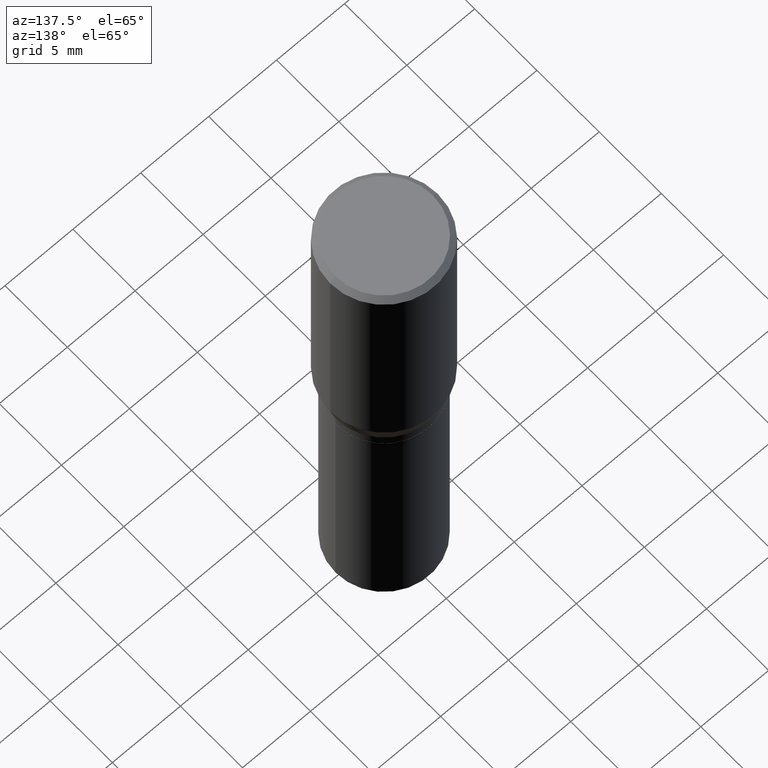
[diagram: clean part render]
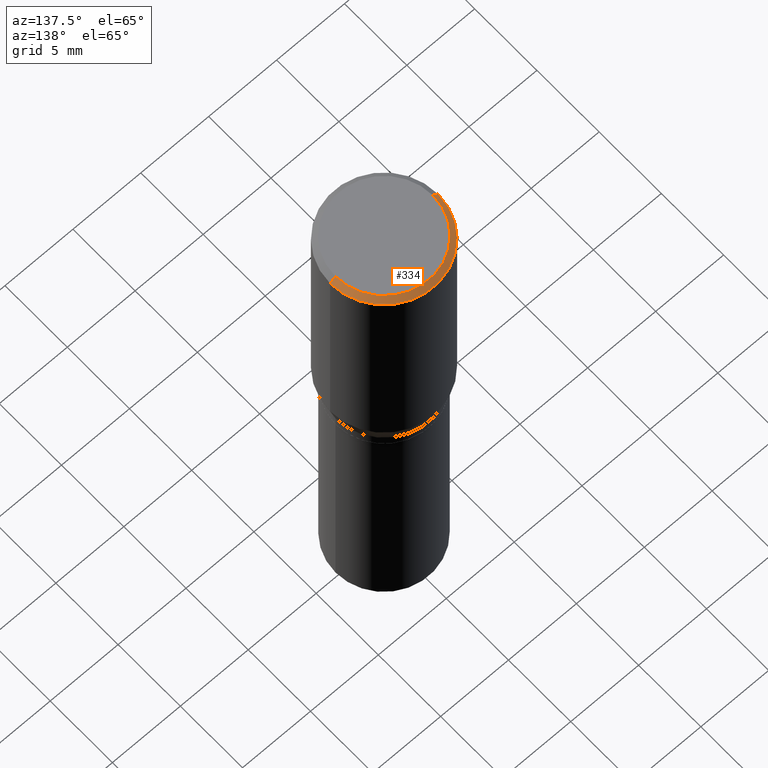
[diagram: same view with one face highlighted and labeled with its STEP entity id]
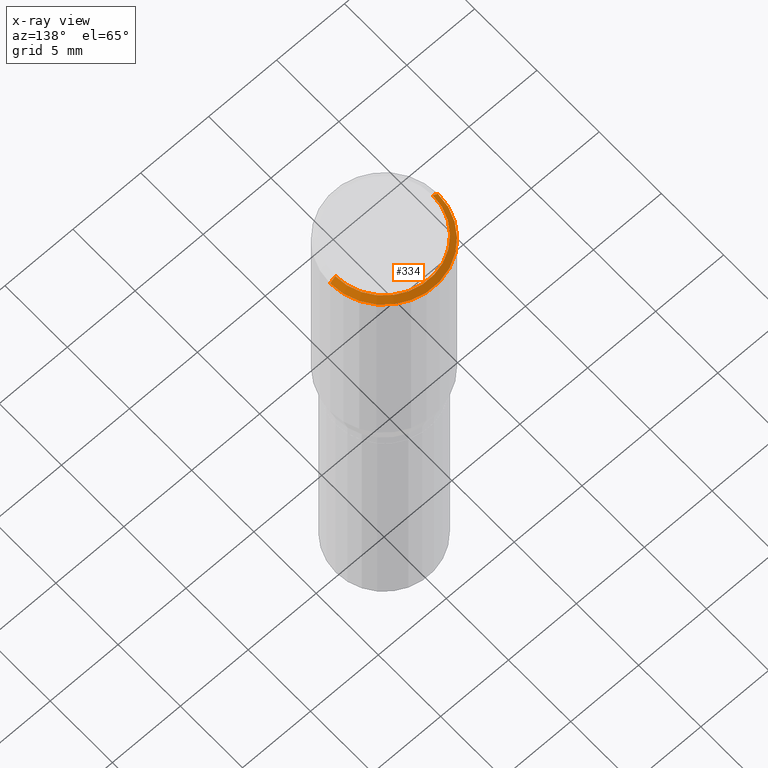
[diagram: x-ray of the same camera — body ghosted, the highlighted face saturated]
A machine part, auxiliary view. The second image highlights one B-rep face of the part: STEP entity #334.
The next image is the same camera in x-ray: the body ghosted, the highlighted face saturated — about 0% of this face is hidden behind the body in this view.
In plain terms, the highlighted conical surface has half-angle 45 deg.
Its self-contained STEP definition (entity closure, byte-faithful):
#14 = VECTOR ( 'NONE', #224, 39.37007874015748143 ) ;
#15 = CARTESIAN_POINT ( 'NONE',  ( -0.1412500000000000144, 1.012529588264509344E-15, 3.098871115969513504E-16 ) ) ;
#17 = CARTESIAN_POINT ( 'NONE',  ( 0.1412500000000000144, -1.046685187209838552E-15, 3.098871115969654020E-16 ) ) ;
#25 = VERTEX_POINT ( 'NONE', #46 ) ;
#46 = CARTESIAN_POINT ( 'NONE',  ( -0.1562500000000000000, -7.093359890406177996E-17, -0.01499999999999999944 ) ) ;
#91 = LINE ( 'NONE', #271, #425 ) ;
#111 = DIRECTION ( 'NONE',  ( 1.000000000000000000, -6.982962677686266711E-15, 0.000000000000000000 ) ) ;
#117 = CIRCLE ( 'NONE', #364, 0.1412500000000000144 ) ;
#122 = EDGE_CURVE ( 'NONE', #175, #25, #303, .T. ) ;
#127 = FACE_OUTER_BOUND ( 'NONE', #244, .T. ) ;
#129 = DIRECTION ( 'NONE',  ( -2.445468806185136597E-29, 3.491481338843145583E-15, 1.000000000000000000 ) ) ;
#130 = CARTESIAN_POINT ( 'NONE',  ( -0.1562500000000000000, 1.038715698305832094E-15, -0.01499999999999999944 ) ) ;
#163 = CARTESIAN_POINT ( 'NONE',  ( -7.578192648491738489E-45, 1.081965067288783235E-30, 3.098871115969583022E-16 ) ) ;
#167 = ORIENTED_EDGE ( 'NONE', *, *, #122, .T. ) ;
#175 = VERTEX_POINT ( 'NONE', #183 ) ;
#183 = CARTESIAN_POINT ( 'NONE',  ( 0.1562500000000000000, -1.143460138471126253E-15, -0.01499999999999999944 ) ) ;
#192 = LINE ( 'NONE', #130, #14 ) ;
#224 = DIRECTION ( 'NONE',  ( -0.7071067811865400232, 2.468850131082178174E-15, -0.7071067811865550112 ) ) ;
#234 = DIRECTION ( 'NONE',  ( -1.000000000000000000, 6.982962677686266711E-15, 0.000000000000000000 ) ) ;
#244 = EDGE_LOOP ( 'NONE', ( #389, #255, #167, #415 ) ) ;
#250 = CARTESIAN_POINT ( 'NONE',  ( 3.668203209277705088E-31, -5.237222008264718399E-17, -0.01499999999999999944 ) ) ;
#255 = ORIENTED_EDGE ( 'NONE', *, *, #383, .T. ) ;
#271 = CARTESIAN_POINT ( 'NONE',  ( 0.1562500000000000000, -1.124325032234449083E-15, -0.01499999999999999944 ) ) ;
#285 = VERTEX_POINT ( 'NONE', #17 ) ;
#302 = DIRECTION ( 'NONE',  ( 1.000000000000000000, -6.982962677686265922E-15, 4.895681441798226927E-29 ) ) ;
#303 = CIRCLE ( 'NONE', #457, 0.1562500000000000000 ) ;
#306 = EDGE_CURVE ( 'NONE', #285, #310, #117, .T. ) ;
#310 = VERTEX_POINT ( 'NONE', #15 ) ;
#331 = DIRECTION ( 'NONE',  ( 2.445468806185136597E-29, -3.491481338843145583E-15, -1.000000000000000000 ) ) ;
#334 = ADVANCED_FACE ( 'NONE', ( #127 ), #401, .T. ) ;
#335 = CARTESIAN_POINT ( 'NONE',  ( 3.668203209277705088E-31, -5.237222008264718399E-17, -0.01499999999999999944 ) ) ;
#364 = AXIS2_PLACEMENT_3D ( 'NONE', #163, #129, #302 ) ;
#366 = DIRECTION ( 'NONE',  ( -2.445468806185136597E-29, 3.491481338843145583E-15, 1.000000000000000000 ) ) ;
#368 = DIRECTION ( 'NONE',  ( 0.7071067811865400232, -7.319954787623230802E-15, -0.7071067811865550112 ) ) ;
#374 = AXIS2_PLACEMENT_3D ( 'NONE', #335, #331, #234 ) ;
#383 = EDGE_CURVE ( 'NONE', #285, #175, #91, .T. ) ;
#389 = ORIENTED_EDGE ( 'NONE', *, *, #306, .F. ) ;
#401 = CONICAL_SURFACE ( 'NONE', #374, 0.1562500000000000000, 0.7853981633974377319 ) ;
#415 = ORIENTED_EDGE ( 'NONE', *, *, #427, .F. ) ;
#425 = VECTOR ( 'NONE', #368, 39.37007874015748143 ) ;
#427 = EDGE_CURVE ( 'NONE', #310, #25, #192, .T. ) ;
#457 = AXIS2_PLACEMENT_3D ( 'NONE', #250, #366, #111 ) ;